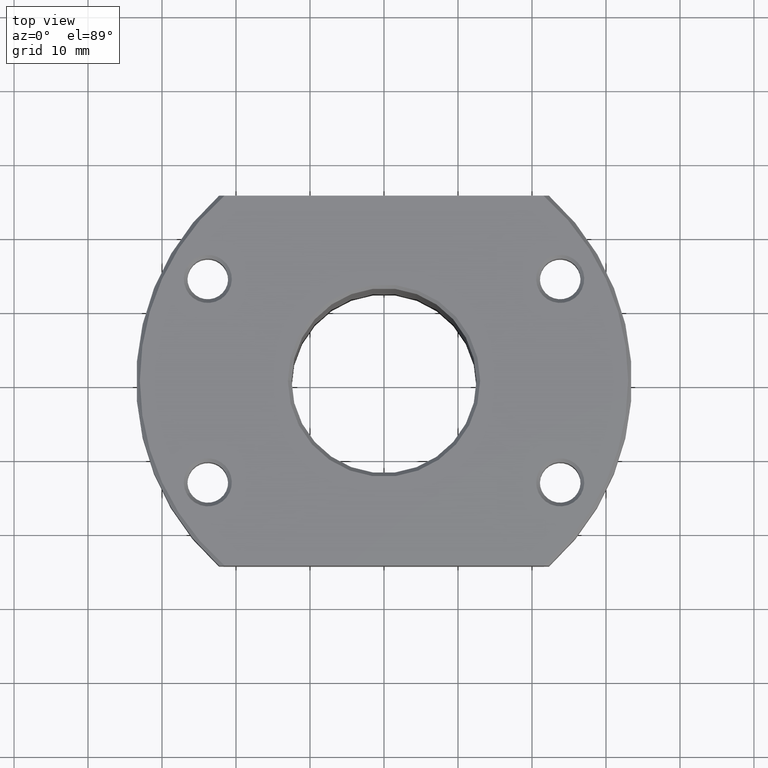
[diagram: clean part render]
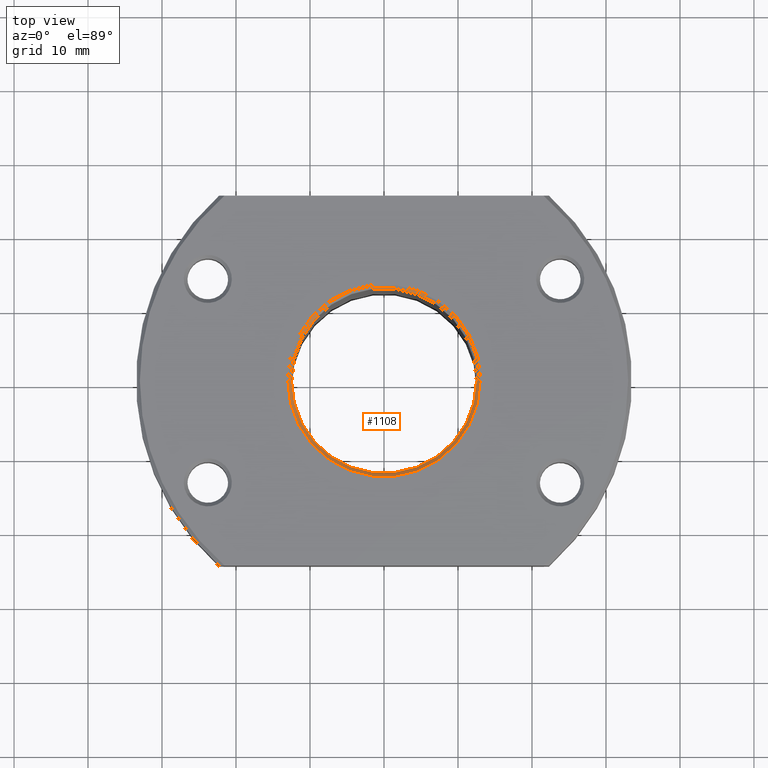
[diagram: same view with one face highlighted and labeled with its STEP entity id]
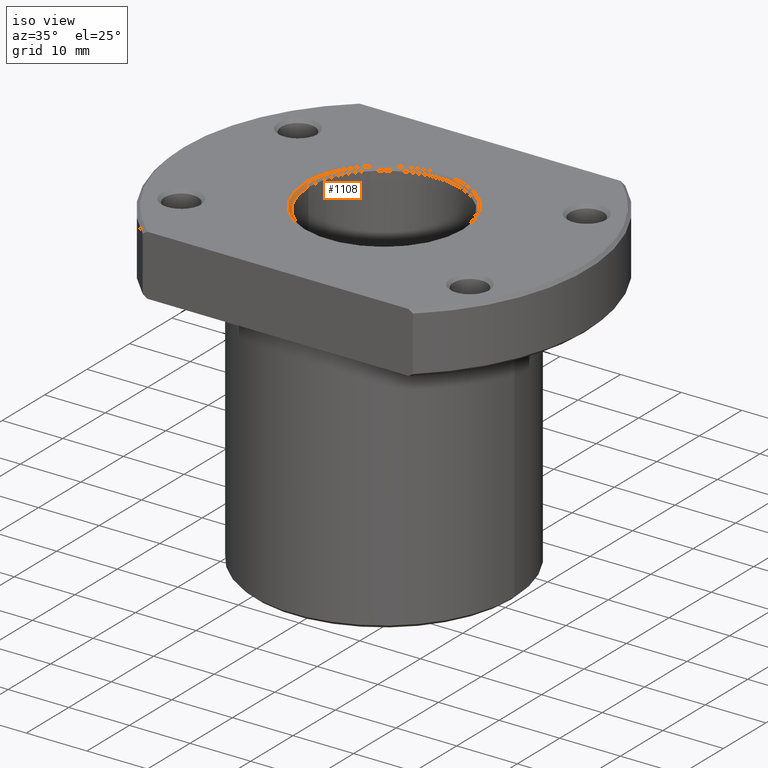
[diagram: same view with one face highlighted and labeled with its STEP entity id]
A machine part, top view. The second image highlights one B-rep face of the part: STEP entity #1108.
A second angle (iso view) of the same face is appended — the face is thin or edge-on in the first view.
In plain terms, the highlighted conical surface has half-angle 45 deg.
Its self-contained STEP definition (entity closure, byte-faithful):
#1021=AXIS2_PLACEMENT_3D('Circle Axis2P3D',#1019,#1020,$) ;
#1063=AXIS2_PLACEMENT_3D('Circle Axis2P3D',#1061,#1062,$) ;
#1090=AXIS2_PLACEMENT_3D('Cone Axis2P3D',#1087,#1088,#1089) ;
#997=CARTESIAN_POINT('Vertex',(12.5,-3.06151588456E-015,52.5)) ;
#999=CARTESIAN_POINT('Vertex',(-12.5,1.53075794228E-015,52.5)) ;
#1019=CARTESIAN_POINT('Axis2P3D Location',(0.,0.,52.5)) ;
#1056=CARTESIAN_POINT('Vertex',(13.,9.91665517064E-015,53.)) ;
#1058=CARTESIAN_POINT('Vertex',(-13.,1.17280859284E-007,53.)) ;
#1061=CARTESIAN_POINT('Axis2P3D Location',(0.,1.55431223448E-015,53.)) ;
#1087=CARTESIAN_POINT('Axis2P3D Location',(-3.48610029732E-014,4.61852778244E-014,40.)) ;
#1092=CARTESIAN_POINT('Line Origine',(-12.75,3.82071878025E-007,52.75)) ;
#1097=CARTESIAN_POINT('Line Origine',(12.75,3.77475828373E-015,52.75)) ;
#1020=DIRECTION('Axis2P3D Direction',(0.,0.,1.)) ;
#1062=DIRECTION('Axis2P3D Direction',(0.,0.,1.)) ;
#1088=DIRECTION('Axis2P3D Direction',(2.6645352591E-015,-3.5527136788E-015,1.)) ;
#1089=DIRECTION('Axis2P3D XDirection',(-0.994864896466,0.101211846044,3.02930473672E-015)) ;
#1093=DIRECTION('Vector Direction',(-0.707106781187,2.11894575423E-008,0.707106781187)) ;
#1098=DIRECTION('Vector Direction',(0.707106781187,-2.51214793389E-015,0.707106781187)) ;
#1094=VECTOR('Line Direction',#1093,1.) ;
#1099=VECTOR('Line Direction',#1098,1.) ;
#1103=ORIENTED_EDGE('',*,*,#1096,.T.) ;
#1104=ORIENTED_EDGE('',*,*,#1065,.T.) ;
#1105=ORIENTED_EDGE('',*,*,#1101,.F.) ;
#1106=ORIENTED_EDGE('',*,*,#1023,.F.) ;
#1108=ADVANCED_FACE('',(#1107),#1091,.F.) ;
#1022=CIRCLE('generated circle',#1021,12.5) ;
#1064=CIRCLE('generated circle',#1063,13.) ;
#1091=CONICAL_SURFACE('Cone',#1090,0.,0.785398163397) ;
#1023=EDGE_CURVE('',#1000,#998,#1022,.T.) ;
#1065=EDGE_CURVE('',#1059,#1057,#1064,.T.) ;
#1096=EDGE_CURVE('',#1000,#1059,#1095,.T.) ;
#1101=EDGE_CURVE('',#998,#1057,#1100,.T.) ;
#1102=EDGE_LOOP('',(#1103,#1104,#1105,#1106)) ;
#1107=FACE_OUTER_BOUND('',#1102,.T.) ;
#1095=LINE('Line',#1092,#1094) ;
#1100=LINE('Line',#1097,#1099) ;
#998=VERTEX_POINT('',#997) ;
#1000=VERTEX_POINT('',#999) ;
#1057=VERTEX_POINT('',#1056) ;
#1059=VERTEX_POINT('',#1058) ;